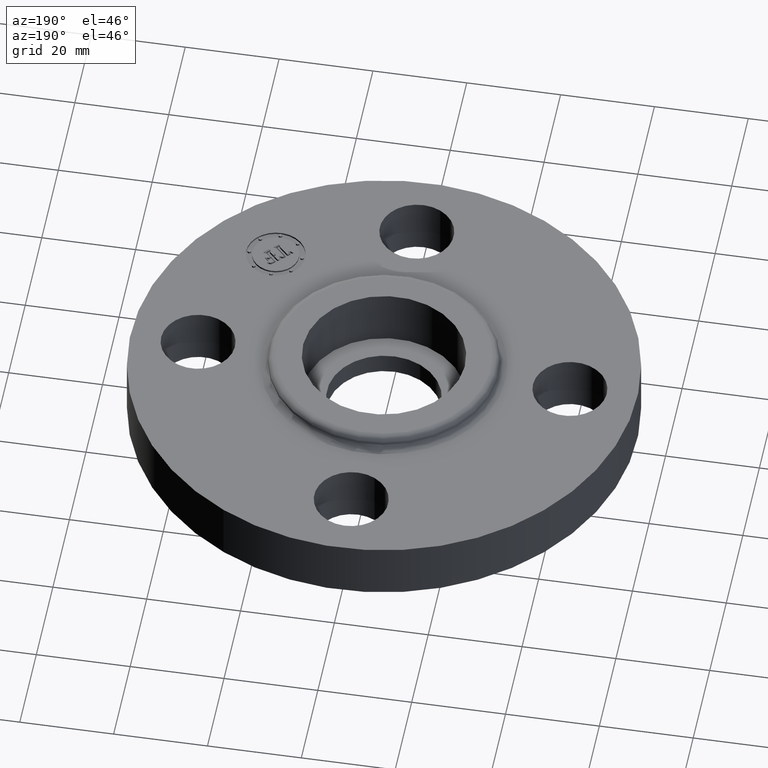
[diagram: clean part render]
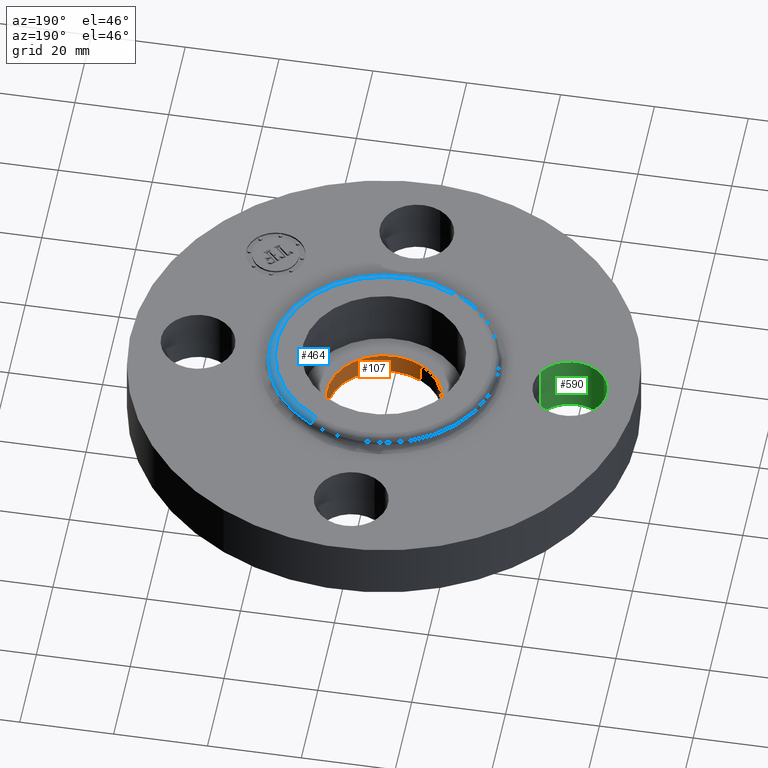
[diagram: same view with three faces highlighted in distinct colors, each labeled with its STEP entity id]
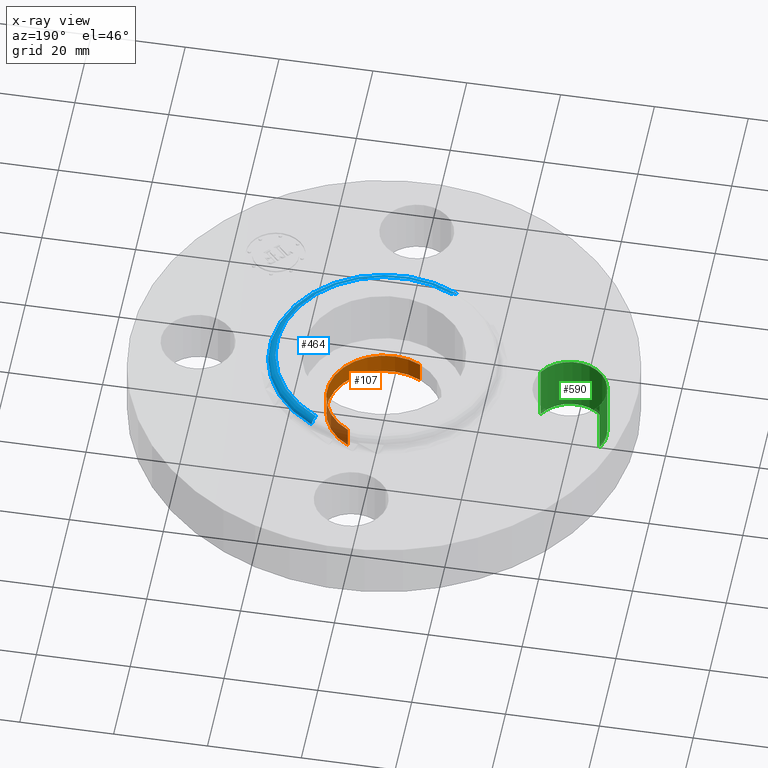
[diagram: x-ray of the same camera — body ghosted, the three highlighted faces saturated]
A machine part, auxiliary view with three faces highlighted in distinct colors.
The next image is the same camera in x-ray (body ghosted, the three faces saturated) — at least one of them is partly hidden behind the body in this view.
Their STEP definitions:

[orange] entity #107 — the highlighted cylindrical surface (partial cylindrical patch) has radius 12.1539 mm, axis along (0, 0, -1).
#69=AXIS2_PLACEMENT_3D('Circle Axis2P3D',#67,#68,$) ;
#80=AXIS2_PLACEMENT_3D('Cylinder Axis2P3D',#77,#78,#79) ;
#91=AXIS2_PLACEMENT_3D('Circle Axis2P3D',#89,#90,$) ;
#62=CARTESIAN_POINT('Vertex',(-0.229405120223,-0.419923255866,0.12)) ;
#64=CARTESIAN_POINT('Vertex',(0.229405120223,0.419923255866,0.12)) ;
#67=CARTESIAN_POINT('Axis2P3D Location',(2.09805925913E-016,5.24514814784E-017,0.12)) ;
#77=CARTESIAN_POINT('Axis2P3D Location',(0.,0.,0.278750000001)) ;
#82=CARTESIAN_POINT('Line Origine',(0.229405120223,0.419923255866,0.0287500000001)) ;
#86=CARTESIAN_POINT('Vertex',(0.229405120223,0.419923255866,-0.0625000000003)) ;
#89=CARTESIAN_POINT('Axis2P3D Location',(0.,0.,-0.0625000000003)) ;
#93=CARTESIAN_POINT('Vertex',(-0.229405120223,-0.419923255866,-0.0625000000003)) ;
#96=CARTESIAN_POINT('Line Origine',(-0.229405120223,-0.419923255866,0.0287500000001)) ;
#68=DIRECTION('Axis2P3D Direction',(0.,0.,-0.0393700787402)) ;
#78=DIRECTION('Axis2P3D Direction',(0.,0.,-0.0393700787402)) ;
#79=DIRECTION('Axis2P3D XDirection',(-0.0188750212049,-0.0345504945626,0.)) ;
#83=DIRECTION('Vector Direction',(0.,0.,-0.0393700787402)) ;
#90=DIRECTION('Axis2P3D Direction',(0.,0.,-0.0393700787402)) ;
#97=DIRECTION('Vector Direction',(0.,0.,-0.0393700787402)) ;
#84=VECTOR('Line Direction',#83,0.0393700787402) ;
#98=VECTOR('Line Direction',#97,0.0393700787402) ;
#102=ORIENTED_EDGE('',*,*,#88,.T.) ;
#103=ORIENTED_EDGE('',*,*,#95,.T.) ;
#104=ORIENTED_EDGE('',*,*,#100,.F.) ;
#105=ORIENTED_EDGE('',*,*,#71,.F.) ;
#107=ADVANCED_FACE('PartBody',(#106),#81,.F.) ;
#70=CIRCLE('generated circle',#69,0.478500000002) ;
#92=CIRCLE('generated circle',#91,0.478500000002) ;
#81=CYLINDRICAL_SURFACE('generated cylinder',#80,0.478500000002) ;
#71=EDGE_CURVE('',#65,#63,#70,.T.) ;
#88=EDGE_CURVE('',#65,#87,#85,.T.) ;
#95=EDGE_CURVE('',#87,#94,#92,.T.) ;
#100=EDGE_CURVE('',#63,#94,#99,.T.) ;
#101=EDGE_LOOP('',(#102,#103,#104,#105)) ;
#106=FACE_OUTER_BOUND('',#101,.T.) ;
#85=LINE('Line',#82,#84) ;
#99=LINE('Line',#96,#98) ;
#63=VERTEX_POINT('',#62) ;
#65=VERTEX_POINT('',#64) ;
#87=VERTEX_POINT('',#86) ;
#94=VERTEX_POINT('',#93) ;

[blue] entity #464 — the highlighted toroidal blend (fillet) surface has major radius 22.8218 mm and minor (blend) radius 1.524 mm.
#405=AXIS2_PLACEMENT_3D('Circle Axis2P3D',#403,#404,$) ;
#437=AXIS2_PLACEMENT_3D('Torus Axis2P3D',#434,#435,#436) ;
#441=AXIS2_PLACEMENT_3D('Circle Axis2P3D',#439,#440,$) ;
#448=AXIS2_PLACEMENT_3D('Circle Axis2P3D',#446,#447,$) ;
#455=AXIS2_PLACEMENT_3D('Circle Axis2P3D',#453,#454,$) ;
#400=CARTESIAN_POINT('Vertex',(0.459089865212,0.840358361433,0.570418890662)) ;
#403=CARTESIAN_POINT('Axis2P3D Location',(0.,0.,0.570418890662)) ;
#407=CARTESIAN_POINT('Vertex',(-0.459089865212,-0.840358361433,0.570418890662)) ;
#434=CARTESIAN_POINT('Axis2P3D Location',(0.,0.,0.560000000002)) ;
#439=CARTESIAN_POINT('Axis2P3D Location',(0.430761345967,0.788503354781,0.560000000002)) ;
#443=CARTESIAN_POINT('Vertex',(0.430761345967,0.788503354781,0.620000000002)) ;
#446=CARTESIAN_POINT('Axis2P3D Location',(0.,0.,0.620000000002)) ;
#450=CARTESIAN_POINT('Vertex',(-0.430761345967,-0.788503354781,0.620000000002)) ;
#453=CARTESIAN_POINT('Axis2P3D Location',(-0.430761345967,-0.788503354781,0.560000000002)) ;
#404=DIRECTION('Axis2P3D Direction',(0.,0.,-0.0393700787402)) ;
#435=DIRECTION('Axis2P3D Direction',(0.,0.,-0.0393700787402)) ;
#436=DIRECTION('Axis2P3D XDirection',(-0.0188750212049,-0.0345504945626,0.)) ;
#440=DIRECTION('Axis2P3D Direction',(-0.0345504945626,0.0188750212049,0.)) ;
#447=DIRECTION('Axis2P3D Direction',(0.,0.,-0.0393700787402)) ;
#454=DIRECTION('Axis2P3D Direction',(0.0345504945626,-0.0188750212049,0.)) ;
#459=ORIENTED_EDGE('',*,*,#409,.F.) ;
#460=ORIENTED_EDGE('',*,*,#445,.T.) ;
#461=ORIENTED_EDGE('',*,*,#452,.T.) ;
#462=ORIENTED_EDGE('',*,*,#457,.F.) ;
#464=ADVANCED_FACE('PartBody',(#463),#438,.T.) ;
#406=CIRCLE('generated circle',#405,0.957583249629) ;
#442=CIRCLE('generated circle',#441,0.0600000000002) ;
#449=CIRCLE('generated circle',#448,0.898494784448) ;
#456=CIRCLE('generated circle',#455,0.0600000000002) ;
#438=TOROIDAL_SURFACE('homeo Torus',#437,0.898494784448,0.0600000000002) ;
#409=EDGE_CURVE('',#401,#408,#406,.T.) ;
#445=EDGE_CURVE('',#401,#444,#442,.F.) ;
#452=EDGE_CURVE('',#444,#451,#449,.T.) ;
#457=EDGE_CURVE('',#408,#451,#456,.F.) ;
#458=EDGE_LOOP('',(#459,#460,#461,#462)) ;
#463=FACE_OUTER_BOUND('',#458,.T.) ;
#401=VERTEX_POINT('',#400) ;
#408=VERTEX_POINT('',#407) ;
#444=VERTEX_POINT('',#443) ;
#451=VERTEX_POINT('',#450) ;

[green] entity #590 — the highlighted cylindrical surface (partial cylindrical patch) has radius 7.874 mm, axis along (-0, 0, -1).
#256=AXIS2_PLACEMENT_3D('Circle Axis2P3D',#254,#255,$) ;
#551=AXIS2_PLACEMENT_3D('Cylinder Axis2P3D',#548,#549,#550) ;
#581=AXIS2_PLACEMENT_3D('Circle Axis2P3D',#579,#580,$) ;
#254=CARTESIAN_POINT('Axis2P3D Location',(-1.56000000001,-2.79741234551E-016,0.)) ;
#258=CARTESIAN_POINT('Vertex',(-1.28794940582,-0.148621916968,0.)) ;
#260=CARTESIAN_POINT('Vertex',(-1.83205059419,0.148621916968,0.)) ;
#548=CARTESIAN_POINT('Axis2P3D Location',(-1.56000000001,-1.91044900668E-016,0.496062992128)) ;
#553=CARTESIAN_POINT('Line Origine',(-1.83205059419,0.148621916968,0.250000000001)) ;
#557=CARTESIAN_POINT('Vertex',(-1.83205059419,0.148621916968,0.500000000002)) ;
#560=CARTESIAN_POINT('Line Origine',(-1.28794940582,-0.148621916968,0.250000000001)) ;
#564=CARTESIAN_POINT('Vertex',(-1.28794940582,-0.148621916968,0.500000000002)) ;
#579=CARTESIAN_POINT('Axis2P3D Location',(-1.56000000001,-1.91044900668E-016,0.500000000002)) ;
#255=DIRECTION('Axis2P3D Direction',(0.,0.,-0.0393700787402)) ;
#549=DIRECTION('Axis2P3D Direction',(-0.,0.,-0.0393700787402)) ;
#550=DIRECTION('Axis2P3D XDirection',(0.0345504945626,-0.0188750212049,-0.)) ;
#554=DIRECTION('Vector Direction',(0.,0.,-0.0393700787402)) ;
#561=DIRECTION('Vector Direction',(0.,0.,-0.0393700787402)) ;
#580=DIRECTION('Axis2P3D Direction',(-0.,0.,-0.0393700787402)) ;
#555=VECTOR('Line Direction',#554,0.0393700787402) ;
#562=VECTOR('Line Direction',#561,0.0393700787402) ;
#585=ORIENTED_EDGE('',*,*,#566,.F.) ;
#586=ORIENTED_EDGE('',*,*,#262,.T.) ;
#587=ORIENTED_EDGE('',*,*,#559,.T.) ;
#588=ORIENTED_EDGE('',*,*,#583,.F.) ;
#590=ADVANCED_FACE('PartBody',(#589),#552,.F.) ;
#257=CIRCLE('generated circle',#256,0.310000000001) ;
#582=CIRCLE('generated circle',#581,0.310000000001) ;
#552=CYLINDRICAL_SURFACE('generated cylinder',#551,0.310000000001) ;
#262=EDGE_CURVE('',#259,#261,#257,.T.) ;
#559=EDGE_CURVE('',#261,#558,#556,.F.) ;
#566=EDGE_CURVE('',#259,#565,#563,.F.) ;
#583=EDGE_CURVE('',#565,#558,#582,.T.) ;
#584=EDGE_LOOP('',(#585,#586,#587,#588)) ;
#589=FACE_OUTER_BOUND('',#584,.T.) ;
#556=LINE('Line',#553,#555) ;
#563=LINE('Line',#560,#562) ;
#259=VERTEX_POINT('',#258) ;
#261=VERTEX_POINT('',#260) ;
#558=VERTEX_POINT('',#557) ;
#565=VERTEX_POINT('',#564) ;